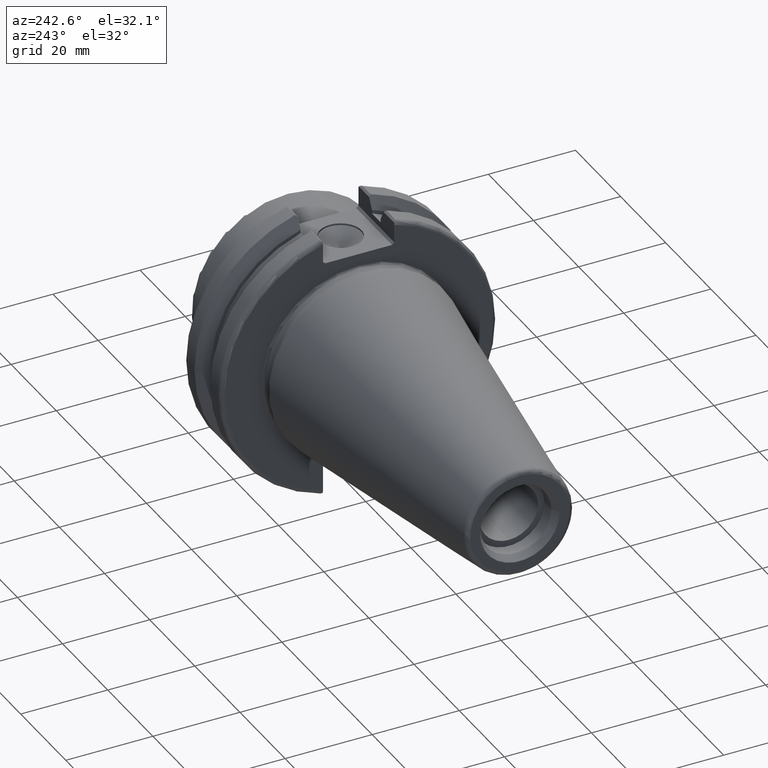
[diagram: clean part render]
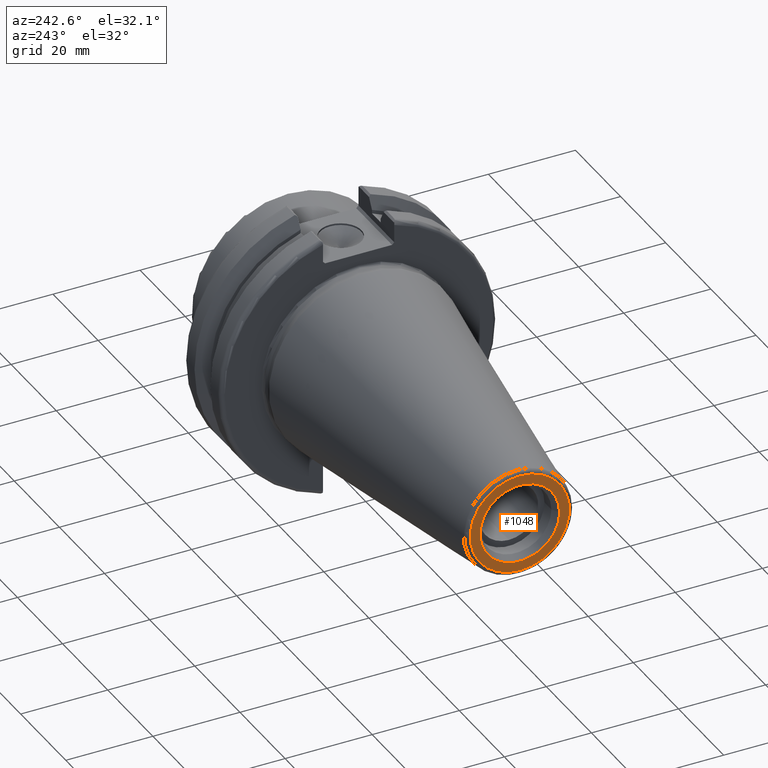
[diagram: same view with one face highlighted and labeled with its STEP entity id]
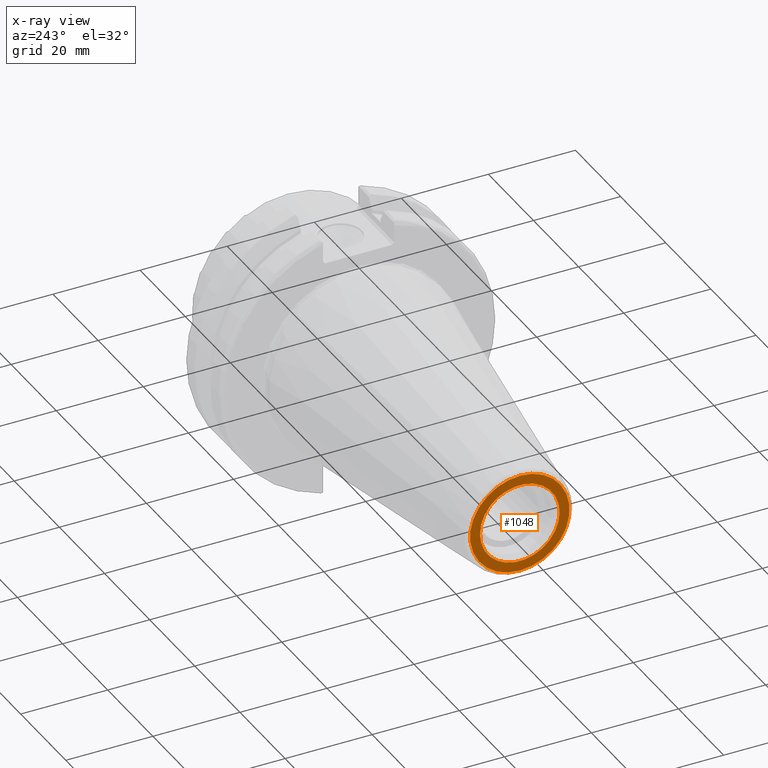
[diagram: x-ray of the same camera — body ghosted, the highlighted face saturated]
A machine part, auxiliary view. The second image highlights one B-rep face of the part: STEP entity #1048.
The next image is the same camera in x-ray: the body ghosted, the highlighted face saturated — about 0% of this face is hidden behind the body in this view.
In plain terms, the highlighted planar face has unit normal (-1, 0, 0).
Its self-contained STEP definition (entity closure, byte-faithful):
#44=FACE_BOUND('',#320,.T.);
#58=PLANE('',#1170);
#256=FACE_OUTER_BOUND('',#319,.T.);
#319=EDGE_LOOP('',(#865));
#320=EDGE_LOOP('',(#866));
#409=CIRCLE('',#1169,11.4071305970304);
#410=CIRCLE('',#1171,9.15);
#514=VERTEX_POINT('',#1880);
#515=VERTEX_POINT('',#1884);
#647=EDGE_CURVE('',#514,#514,#409,.T.);
#648=EDGE_CURVE('',#515,#515,#410,.T.);
#865=ORIENTED_EDGE('',*,*,#647,.F.);
#866=ORIENTED_EDGE('',*,*,#648,.T.);
#1048=ADVANCED_FACE('',(#256,#44),#58,.T.);
#1169=AXIS2_PLACEMENT_3D('',#1882,#1403,#1404);
#1170=AXIS2_PLACEMENT_3D('',#1883,#1405,#1406);
#1171=AXIS2_PLACEMENT_3D('',#1885,#1407,#1408);
#1403=DIRECTION('center_axis',(1.,0.,0.));
#1404=DIRECTION('ref_axis',(0.,-1.,1.83697019872103E-16));
#1405=DIRECTION('center_axis',(-1.,0.,0.));
#1406=DIRECTION('ref_axis',(0.,0.,1.));
#1407=DIRECTION('center_axis',(1.,0.,0.));
#1408=DIRECTION('ref_axis',(0.,0.,-1.));
#1880=CARTESIAN_POINT('',(-68.25,-1.39697059731091E-15,11.4071305970304));
#1882=CARTESIAN_POINT('Origin',(-68.25,0.,0.));
#1883=CARTESIAN_POINT('Origin',(-68.25,12.271875,0.));
#1884=CARTESIAN_POINT('',(-68.25,-9.15,-1.12055182121983E-15));
#1885=CARTESIAN_POINT('Origin',(-68.25,0.,0.));